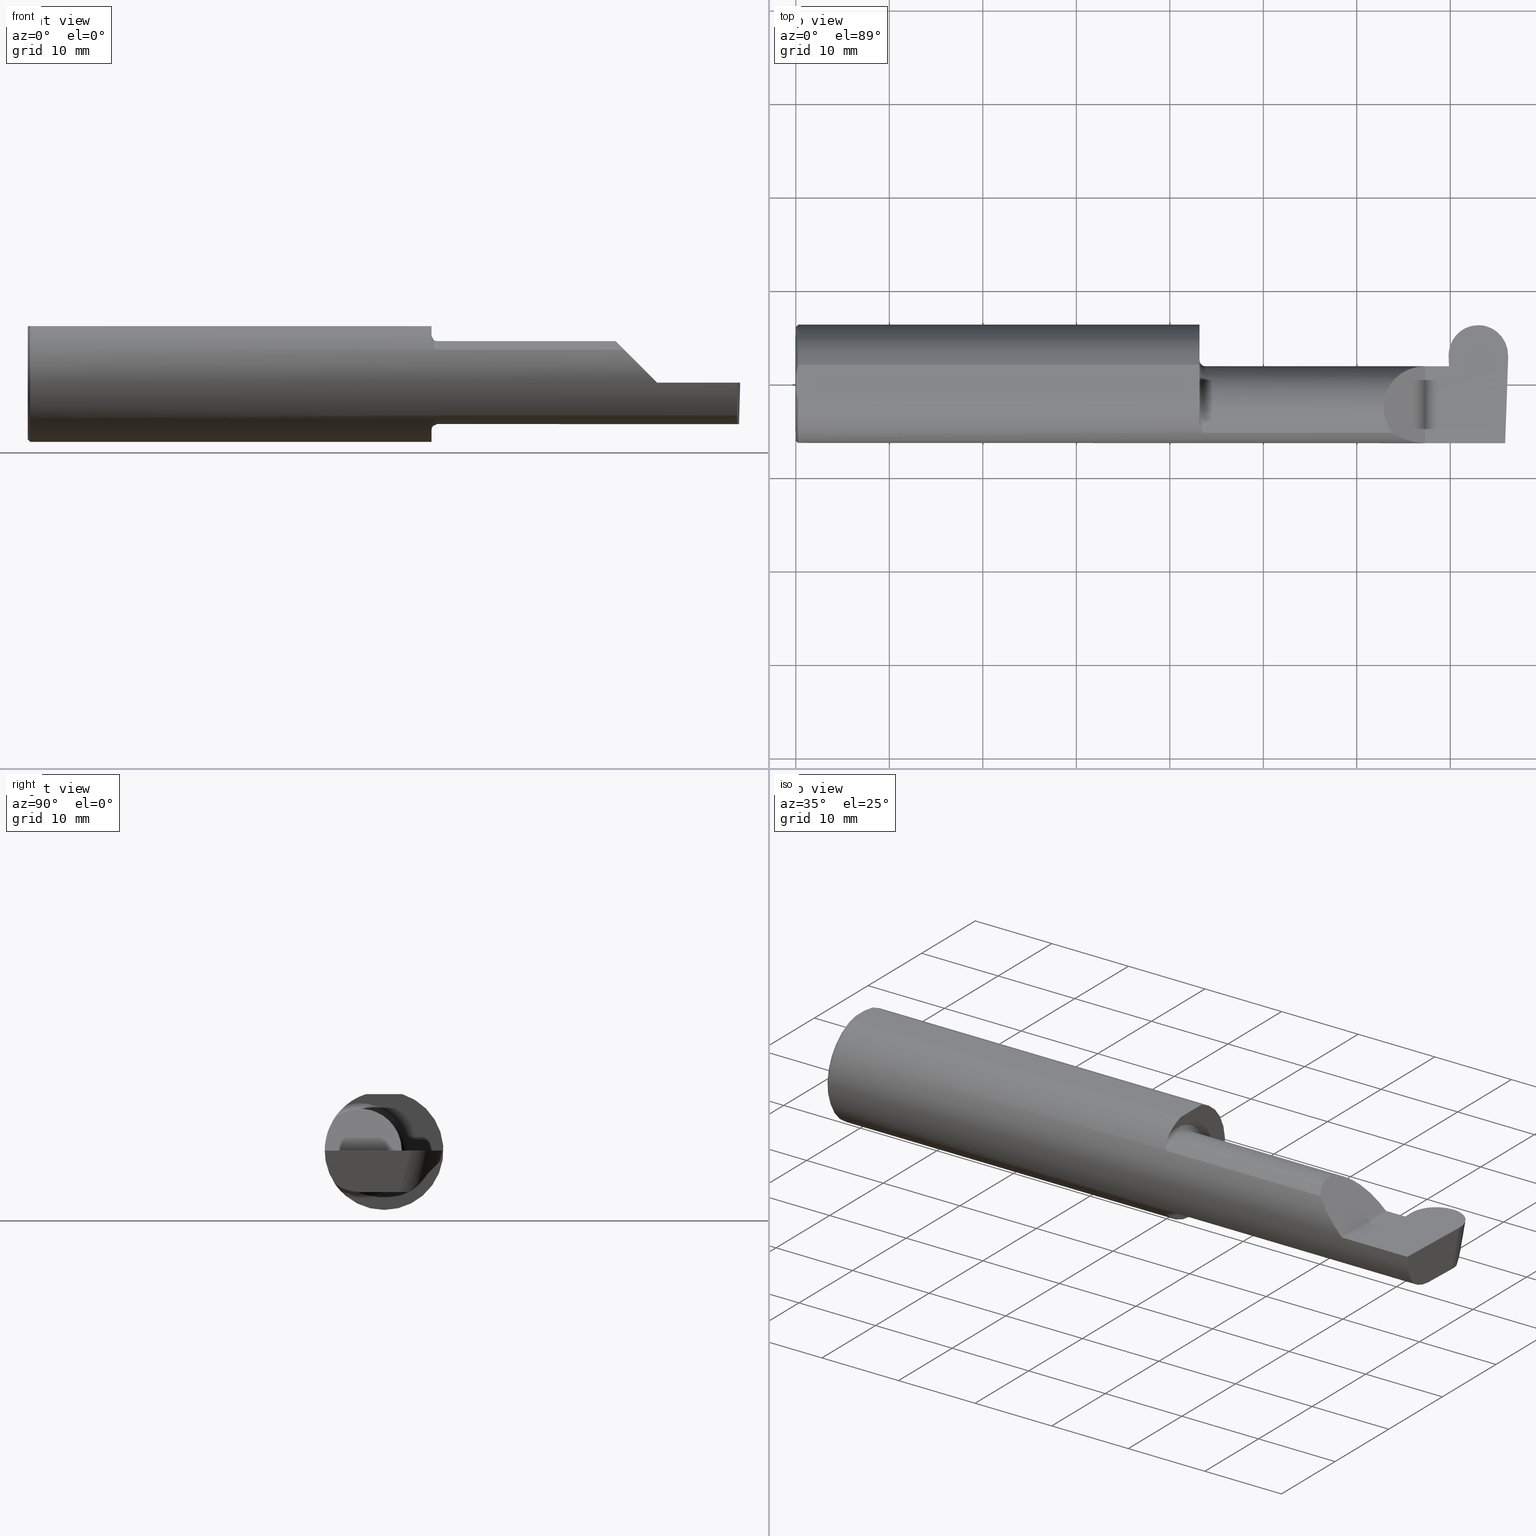
[diagram: canonical four-view strip — front | top / right | iso, engineering-drawing reading convention]
A machine part, canonical four-view strip (front | top / right | iso — engineering-drawing reading convention). The complete STEP part file that produces these views, byte-faithful:
ISO-10303-21;
HEADER;
FILE_DESCRIPTION (( 'STEP AP203' ),
    '1' );
FILE_NAME ('222524-GFR250-20.STEP',
    '2024-06-28T19:29:10',
    ( '' ),
    ( '' ),
    'SwSTEP 2.0',
    'SolidWorks 2024',
    '' );
FILE_SCHEMA (( 'CONFIG_CONTROL_DESIGN' ));
ENDSEC;

DATA;
#1 = FACE_OUTER_BOUND ( 'NONE', #703, .T. ) ;
#2 = VERTEX_POINT ( 'NONE', #100 ) ;
#3 = PERSON_AND_ORGANIZATION_ROLE ( 'creator' ) ;
#4 = ORIENTED_EDGE ( 'NONE', *, *, #396, .F. ) ;
#5 = ADVANCED_FACE ( 'NONE', ( #681 ), #507, .T. ) ;
#6 = VECTOR ( 'NONE', #18, 39.37007874015748854 ) ;
#7 = CIRCLE ( 'NONE', #183, 0.2498499999999999888 ) ;
#8 = CARTESIAN_POINT ( 'NONE',  ( 1.700000000000000178, -0.1616050818046604054, -0.1905487340154980724 ) ) ;
#9 = ORIENTED_EDGE ( 'NONE', *, *, #566, .T. ) ;
#10 = CARTESIAN_POINT ( 'NONE',  ( 0.000000000000000000, -0.07650098038587520299, 0.2378499999999998671 ) ) ;
#11 =( BOUNDED_CURVE ( )  B_SPLINE_CURVE ( 3, ( #82, #660, #498, #203 ),
 .UNSPECIFIED., .F., .T. ) 
 B_SPLINE_CURVE_WITH_KNOTS ( ( 4, 4 ),
 ( 4.712388980384689674, 5.298966915116348986 ),
 .UNSPECIFIED. ) 
 CURVE ( )  GEOMETRIC_REPRESENTATION_ITEM ( )  RATIONAL_B_SPLINE_CURVE ( ( 1.000000000000000000, 0.9715321379117536349, 0.9715321379117536349, 1.000000000000000000 ) ) 
 REPRESENTATION_ITEM ( '' )  );
#12 = VERTEX_POINT ( 'NONE', #394 ) ;
#13 = PERSON_AND_ORGANIZATION ( #698, #115 ) ;
#14 = CARTESIAN_POINT ( 'NONE',  ( 1.701385488563270210, -0.1808287530430325030, -0.1728790649396287071 ) ) ;
#15 = EDGE_LOOP ( 'NONE', ( #500, #485, #712, #144, #526, #568 ) ) ;
#16 = DIRECTION ( 'NONE',  ( 0.000000000000000000, -0.7071067811865435759, -0.7071067811865514585 ) ) ;
#17 = B_SPLINE_CURVE_WITH_KNOTS ( 'NONE', 3,
 ( #590, #310, #484, #538, #709, #83, #531, #701, #657, #14, #304, #478 ),
 .UNSPECIFIED., .F., .F.,
 ( 4, 2, 2, 2, 2, 4 ),
 ( 1.964491429041408615E-07, 0.0001260981470478429213, 0.0002519998449527816628, 0.0005038032407626452137, 0.001007410032382372424, 0.002014623615621820123 ),
 .UNSPECIFIED. ) ;
#18 = DIRECTION ( 'NONE',  ( 0.02590004391968268524, 0.2587322210431824976, 0.9656017944882975268 ) ) ;
#19 = VERTEX_POINT ( 'NONE', #103 ) ;
#20 = EDGE_CURVE ( 'NONE', #319, #164, #233, .T. ) ;
#21 = DIRECTION ( 'NONE',  ( -0.7071067811865439090, 0.000000000000000000, -0.7071067811865511255 ) ) ;
#22 = ORIENTED_EDGE ( 'NONE', *, *, #376, .T. ) ;
#23 = EDGE_CURVE ( 'NONE', #446, #617, #331, .T. ) ;
#24 = DIRECTION ( 'NONE',  ( -0.03489949670249542502, -0.9993908270190959842, 1.222058880457094641E-16 ) ) ;
#25 = LINE ( 'NONE', #256, #294 ) ;
#26 = ORIENTED_EDGE ( 'NONE', *, *, #217, .T. ) ;
#27 = CARTESIAN_POINT ( 'NONE',  ( 2.989756814851906697, -0.08644748268070719111, -0.1750000000000000722 ) ) ;
#28 = CARTESIAN_POINT ( 'NONE',  ( 0.000000000000000000, -0.03090954545120560767, 0.2378499999999998671 ) ) ;
#29 = AXIS2_PLACEMENT_3D ( 'NONE', #351, #406, #287 ) ;
#30 = VERTEX_POINT ( 'NONE', #335 ) ;
#31 = AXIS2_PLACEMENT_3D ( 'NONE', #379, #223, #511 ) ;
#32 = DIRECTION ( 'NONE',  ( -0.02590004391968268177, -0.2587322210431824976, -0.9656017944882975268 ) ) ;
#33 = DIRECTION ( 'NONE',  ( 1.000000000000000000, 0.000000000000000000, -0.000000000000000000 ) ) ;
#34 = ORIENTED_EDGE ( 'NONE', *, *, #167, .T. ) ;
#35 = CARTESIAN_POINT ( 'NONE',  ( 2.409263745716142324, -0.07597241004310675838, 0.2407362542838553388 ) ) ;
#36 = CARTESIAN_POINT ( 'NONE',  ( 1.725000000000000089, -0.1008500000000000646, 0.000000000000000000 ) ) ;
#37 = ADVANCED_FACE ( 'NONE', ( #149 ), #182, .T. ) ;
#38 = DIRECTION ( 'NONE',  ( -1.000000000000000000, -6.511907283740594647E-17, -0.000000000000000000 ) ) ;
#39 = ADVANCED_FACE ( 'NONE', ( #728 ), #107, .F. ) ;
#40 = DIRECTION ( 'NONE',  ( -1.000000000000000000, -6.511907283740594647E-17, -0.000000000000000000 ) ) ;
#41 = VERTEX_POINT ( 'NONE', #503 ) ;
#42 = CARTESIAN_POINT ( 'NONE',  ( 1.700000000000000178, 0.2498499999999997667, 0.2378499999999998671 ) ) ;
#43 = ORIENTED_EDGE ( 'NONE', *, *, #20, .T. ) ;
#44 = CIRCLE ( 'NONE', #105, 0.1999999999999999833 ) ;
#45 = CARTESIAN_POINT ( 'NONE',  ( 1.700000000000000178, 0.07650098038587520299, 0.2378499999999998671 ) ) ;
#46 = EDGE_LOOP ( 'NONE', ( #597, #557, #632, #403, #34, #198, #602, #364, #417, #152 ) ) ;
#47 = CARTESIAN_POINT ( 'NONE',  ( 2.999793206199442785, 0.1134305025558126345, 0.000000000000000000 ) ) ;
#48 = EDGE_CURVE ( 'NONE', #319, #581, #407, .T. ) ;
#49 = DIRECTION ( 'NONE',  ( 1.000000000000000000, 0.000000000000000000, 0.000000000000000000 ) ) ;
#50 = LINE ( 'NONE', #671, #433 ) ;
#51 = DIRECTION ( 'NONE',  ( -6.511907283740594647E-17, 1.000000000000000000, 0.000000000000000000 ) ) ;
#52 = DIRECTION ( 'NONE',  ( 1.000000000000000000, 0.000000000000000000, 0.000000000000000000 ) ) ;
#53 = PRODUCT_DEFINITION_FORMATION_WITH_SPECIFIED_SOURCE ( 'ANY', '', #400, .NOT_KNOWN. ) ;
#54 = DIRECTION ( 'NONE',  ( -0.01806954526206910883, 0.01744955702544859211, 0.9996844524616943506 ) ) ;
#55 = ORIENTED_EDGE ( 'NONE', *, *, #137, .F. ) ;
#56 = DATE_AND_TIME ( #298, #743 ) ;
#57 = PLANE ( 'NONE',  #598 ) ;
#58 = ORIENTED_EDGE ( 'NONE', *, *, #48, .T. ) ;
#59 = EDGE_CURVE ( 'NONE', #315, #535, #156, .T. ) ;
#60 = CALENDAR_DATE ( 2024, 28, 6 ) ;
#61 = CARTESIAN_POINT ( 'NONE',  ( 2.748789500000000441, 0.1195161796598800952, -0.0003276550781925004273 ) ) ;
#62 = ORIENTED_EDGE ( 'NONE', *, *, #704, .T. ) ;
#63 = VECTOR ( 'NONE', #607, 39.37007874015748143 ) ;
#64 = VECTOR ( 'NONE', #38, 39.37007874015748143 ) ;
#65 = AXIS2_PLACEMENT_3D ( 'NONE', #453, #389, #16 ) ;
#66 = DIRECTION ( 'NONE',  ( 0.000000000000000000, -1.000000000000000000, 0.000000000000000000 ) ) ;
#67 = ORIENTED_EDGE ( 'NONE', *, *, #68, .T. ) ;
#68 = EDGE_CURVE ( 'NONE', #439, #12, #523, .T. ) ;
#69 = EDGE_CURVE ( 'NONE', #274, #164, #677, .T. ) ;
#70 = CARTESIAN_POINT ( 'NONE',  ( 2.753013396079577735, 0.1058243371481696476, -0.1750000000000001277 ) ) ;
#71 = ORIENTED_EDGE ( 'NONE', *, *, #469, .F. ) ;
#72 = LINE ( 'NONE', #132, #655 ) ;
#73 = CC_DESIGN_PERSON_AND_ORGANIZATION_ASSIGNMENT ( #347, #237, ( #53 ) ) ;
#74 = LINE ( 'NONE', #184, #284 ) ;
#75 = VERTEX_POINT ( 'NONE', #205 ) ;
#76 = LINE ( 'NONE', #27, #345 ) ;
#77 = AXIS2_PLACEMENT_3D ( 'NONE', #738, #338, #552 ) ;
#78 = CARTESIAN_POINT ( 'NONE',  ( -0.002039370078740339320, 0.2348243371481683328, -0.04599999999999999922 ) ) ;
#79 = VECTOR ( 'NONE', #40, 39.37007874015748143 ) ;
#80 = EDGE_CURVE ( 'NONE', #688, #319, #265, .T. ) ;
#81 = ORIENTED_EDGE ( 'NONE', *, *, #376, .F. ) ;
#82 = CARTESIAN_POINT ( 'NONE',  ( 2.650000000000000355, -0.2498499999999999610, 4.286263797015729199E-17 ) ) ;
#83 = CARTESIAN_POINT ( 'NONE',  ( 1.714302603425052807, -0.2041009206016211885, -0.1441313430770041204 ) ) ;
#84 = ORIENTED_EDGE ( 'NONE', *, *, #217, .F. ) ;
#85 = DIRECTION ( 'NONE',  ( 6.511907283740594647E-17, -1.000000000000000000, 0.000000000000000000 ) ) ;
#86 = CARTESIAN_POINT ( 'NONE',  ( 2.871989500000000195, 0.2471499999999999808, 0.000000000000000000 ) ) ;
#87 = VERTEX_POINT ( 'NONE', #687 ) ;
#88 = DIRECTION ( 'NONE',  ( 0.9992386149554828290, 0.03489418134010756345, 0.01745240643728358798 ) ) ;
#89 = CC_DESIGN_PERSON_AND_ORGANIZATION_ASSIGNMENT ( #583, #174, ( #717 ) ) ;
#90 = DIRECTION ( 'NONE',  ( 0.000000000000000000, -0.9659258262890682012, 0.2588190451025209615 ) ) ;
#91 = B_SPLINE_CURVE_WITH_KNOTS ( 'NONE', 3,
 ( #718, #440, #199, #129, #362, #501, #275, #98, #561, #726, #455, #329, #339, #504 ),
 .UNSPECIFIED., .F., .F.,
 ( 4, 2, 2, 2, 2, 2, 4 ),
 ( 0.0003834465838148152454, 0.0008781406165086708474, 0.001372834649202526449, 0.001867528681896382051, 0.002114875698243305190, 0.002238549206416759821, 0.002362222714590214018 ),
 .UNSPECIFIED. ) ;
#92 = CARTESIAN_POINT ( 'NONE',  ( 0.000000000000000000, 0.03090954545120574992, 0.2378499999999998671 ) ) ;
#93 = CARTESIAN_POINT ( 'NONE',  ( 2.999923484675441010, 0.1171611899918090643, 0.000000000000000000 ) ) ;
#94 = EDGE_CURVE ( 'NONE', #539, #306, #529, .T. ) ;
#95 = FACE_OUTER_BOUND ( 'NONE', #288, .T. ) ;
#96 = ADVANCED_FACE ( 'NONE', ( #116 ), #245, .F. ) ;
#97 = DIRECTION ( 'NONE',  ( 0.000000000000000000, -0.9659258262890683122, 0.2588190451025209615 ) ) ;
#98 = CARTESIAN_POINT ( 'NONE',  ( 1.712616400345755130, -0.2024684335577101590, 0.1464246884265639759 ) ) ;
#99 = CARTESIAN_POINT ( 'NONE',  ( 1.725000000000000089, -0.2080850024789289432, 0.1382955322609669135 ) ) ;
#100 = CARTESIAN_POINT ( 'NONE',  ( 2.511704467739031887, -0.2080850024789288599, 0.1382955322609669413 ) ) ;
#101 = EDGE_LOOP ( 'NONE', ( #733, #695, #43, #290 ) ) ;
#102 = CARTESIAN_POINT ( 'NONE',  ( -0.002039370078740339320, 0.2471499999999999808, 0.000000000000000000 ) ) ;
#103 = CARTESIAN_POINT ( 'NONE',  ( 2.871989500000000195, 0.2471499999999999808, 0.000000000000000000 ) ) ;
#104 = ADVANCED_FACE ( 'NONE', ( #1 ), #57, .T. ) ;
#105 = AXIS2_PLACEMENT_3D ( 'NONE', #466, #355, #66 ) ;
#106 = CARTESIAN_POINT ( 'NONE',  ( 2.995099234303557623, 0.06653939388036604619, -0.1750000000000001277 ) ) ;
#107 = PLANE ( 'NONE',  #690 ) ;
#108 = PLANE ( 'NONE',  #493 ) ;
#109 = CARTESIAN_POINT ( 'NONE',  ( 1.700000000000000178, 0.2498499999999998222, 0.000000000000000000 ) ) ;
#110 = PERSON_AND_ORGANIZATION ( #698, #115 ) ;
#111 = APPROVAL ( #465, 'UNSPECIFIED' ) ;
#112 = CARTESIAN_POINT ( 'NONE',  ( 2.995099234303557623, 0.06653939388036604619, -0.1750000000000001277 ) ) ;
#113 = ORIENTED_EDGE ( 'NONE', *, *, #94, .T. ) ;
#114 = APPROVAL_ROLE ( '' ) ;
#115 = ORGANIZATION ( 'UNSPECIFIED', 'UNSPECIFIED', '' ) ;
#116 = FACE_OUTER_BOUND ( 'NONE', #301, .T. ) ;
#117 = ORIENTED_EDGE ( 'NONE', *, *, #176, .F. ) ;
#118 = COORDINATED_UNIVERSAL_TIME_OFFSET ( 8, 0, .BEHIND. ) ;
#119 = CARTESIAN_POINT ( 'NONE',  ( 0.000000000000000000, 0.000000000000000000, 0.000000000000000000 ) ) ;
#120 = ORIENTED_EDGE ( 'NONE', *, *, #276, .T. ) ;
#121 = CARTESIAN_POINT ( 'NONE',  ( 2.950455787437228139, 0.2471500000000003971, -7.856938782845208821E-19 ) ) ;
#122 = ORIENTED_EDGE ( 'NONE', *, *, #550, .F. ) ;
#123 = EDGE_CURVE ( 'NONE', #581, #274, #518, .T. ) ;
#124 = APPROVAL_STATUS ( 'not_yet_approved' ) ;
#125 = VECTOR ( 'NONE', #250, 39.37007874015748143 ) ;
#126 = VECTOR ( 'NONE', #392, 39.37007874015748143 ) ;
#127 = CARTESIAN_POINT ( 'NONE',  ( 2.875201260087795863, 0.2471499999999999808, 0.000000000000000000 ) ) ;
#128 = ORIENTED_EDGE ( 'NONE', *, *, #239, .F. ) ;
#129 = CARTESIAN_POINT ( 'NONE',  ( 1.701849548162864600, -0.1805300287242673773, 0.1728462070311780896 ) ) ;
#130 = CARTESIAN_POINT ( 'NONE',  ( 2.748789500000000441, 0.1943187064415508314, 3.216169852589703280E-17 ) ) ;
#131 = ORIENTED_EDGE ( 'NONE', *, *, #405, .T. ) ;
#132 = CARTESIAN_POINT ( 'NONE',  ( -0.002039370078740339320, 0.1058243371481696476, -0.1750000000000001277 ) ) ;
#133 = DIRECTION ( 'NONE',  ( -1.000000000000000000, -6.511907283740594647E-17, -0.000000000000000000 ) ) ;
#134 = ORIENTED_EDGE ( 'NONE', *, *, #166, .T. ) ;
#135 = CARTESIAN_POINT ( 'NONE',  ( 1.725000000000000089, -0.1008500000000000785, 0.000000000000000000 ) ) ;
#136 = CARTESIAN_POINT ( 'NONE',  ( -0.002039370078740339320, 0.2471499999999999808, 0.000000000000000000 ) ) ;
#137 = EDGE_CURVE ( 'NONE', #745, #559, #229, .T. ) ;
#138 = ORIENTED_EDGE ( 'NONE', *, *, #239, .T. ) ;
#139 = CARTESIAN_POINT ( 'NONE',  ( 2.753585400763539415, -0.1008500000000000091, -0.1750000000000000444 ) ) ;
#140 = CARTESIAN_POINT ( 'NONE',  ( 2.748789500000000441, 0.1196039745734777532, 3.076441347372056086E-17 ) ) ;
#141 = EDGE_LOOP ( 'NONE', ( #128, #662, #576, #254, #650 ) ) ;
#142 = DIRECTION ( 'NONE',  ( 1.000000000000000000, -0.000000000000000000, -0.000000000000000000 ) ) ;
#143 = CARTESIAN_POINT ( 'NONE',  ( 2.750367999175829414, 0.07414999999999984104, 0.000000000000000000 ) ) ;
#144 = ORIENTED_EDGE ( 'NONE', *, *, #68, .F. ) ;
#145 = DIRECTION ( 'NONE',  ( -0.02590004391968268177, -0.2587322210431824421, -0.9656017944882975268 ) ) ;
#146 = EDGE_CURVE ( 'NONE', #559, #423, #163, .T. ) ;
#147 = FACE_OUTER_BOUND ( 'NONE', #373, .T. ) ;
#148 = VECTOR ( 'NONE', #54, 39.37007874015748143 ) ;
#149 = FACE_OUTER_BOUND ( 'NONE', #101, .T. ) ;
#150 = DIRECTION ( 'NONE',  ( 0.9998367324388628408, 0.0003153570480505128921, 0.01806679318280336732 ) ) ;
#151 = DIRECTION ( 'NONE',  ( -1.000000000000000000, 0.000000000000000000, 1.224646799147351975E-16 ) ) ;
#152 = ORIENTED_EDGE ( 'NONE', *, *, #191, .F. ) ;
#153 = EDGE_LOOP ( 'NONE', ( #386, #360, #81, #414 ) ) ;
#154 = EDGE_CURVE ( 'NONE', #608, #587, #680, .T. ) ;
#155 = CARTESIAN_POINT ( 'NONE',  ( 2.748789500000000441, 0.1454645653348735634, -0.05220861937271872866 ) ) ;
#156 = LINE ( 'NONE', #161, #729 ) ;
#157 = DIRECTION ( 'NONE',  ( 1.000000000000000000, 6.511907283740594647E-17, 0.000000000000000000 ) ) ;
#158 = ORIENTED_EDGE ( 'NONE', *, *, #713, .F. ) ;
#159 = LOCAL_TIME ( 12, 29, 10.00000000000000000, #686 ) ;
#160 = CARTESIAN_POINT ( 'NONE',  ( 1.700000000000000178, 0.07404339472834149671, -0.006107411922944308742 ) ) ;
#161 = CARTESIAN_POINT ( 'NONE',  ( 3.402190948718818664, -0.1008499999999999674, -0.1750000000000000722 ) ) ;
#162 = APPLICATION_PROTOCOL_DEFINITION ( 'international standard', 'config_control_design', 1994, #570 ) ;
#163 = LINE ( 'NONE', #342, #273 ) ;
#164 = VERTEX_POINT ( 'NONE', #625 ) ;
#165 = DATE_AND_TIME ( #520, #447 ) ;
#166 = EDGE_CURVE ( 'NONE', #75, #439, #186, .T. ) ;
#167 = EDGE_CURVE ( 'NONE', #212, #30, #240, .T. ) ;
#168 = DIRECTION ( 'NONE',  ( 1.000000000000000000, 0.000000000000000000, 0.000000000000000000 ) ) ;
#169 = ORIENTED_EDGE ( 'NONE', *, *, #276, .F. ) ;
#170 = VECTOR ( 'NONE', #168, 39.37007874015748143 ) ;
#171 = APPROVAL_PERSON_ORGANIZATION ( #110, #644, #358 ) ;
#172 = CARTESIAN_POINT ( 'NONE',  ( 1.700000000000000178, 0.07414999999999995206, 1.592040838891556877E-16 ) ) ;
#173 = ORIENTED_EDGE ( 'NONE', *, *, #348, .T. ) ;
#174 = PERSON_AND_ORGANIZATION_ROLE ( 'classification_officer' ) ;
#175 = UNCERTAINTY_MEASURE_WITH_UNIT (LENGTH_MEASURE( 1.000000000000000082E-05 ), #266, 'distance_accuracy_value', 'NONE');
#176 = EDGE_CURVE ( 'NONE', #512, #699, #283, .T. ) ;
#177 = FACE_OUTER_BOUND ( 'NONE', #46, .T. ) ;
#178 = ORIENTED_EDGE ( 'NONE', *, *, #340, .F. ) ;
#179 = APPROVAL_ROLE ( '' ) ;
#180 = DIRECTION ( 'NONE',  ( -0.03489949670249543195, -0.9993908270190959842, 0.000000000000000000 ) ) ;
#181 = ORIENTED_EDGE ( 'NONE', *, *, #361, .T. ) ;
#182 = CONICAL_SURFACE ( 'NONE', #357, 0.2398500000000001742, 0.7853981633974466137 ) ;
#183 = AXIS2_PLACEMENT_3D ( 'NONE', #722, #606, #428 ) ;
#184 = CARTESIAN_POINT ( 'NONE',  ( 2.871989500000000195, 0.2471499999999999808, -3.410704134146979313E-18 ) ) ;
#185 = ORIENTED_EDGE ( 'NONE', *, *, #626, .T. ) ;
#186 =( BOUNDED_CURVE ( )  B_SPLINE_CURVE ( 3, ( #61, #349, #571, #470 ),
 .UNSPECIFIED., .F., .T. ) 
 B_SPLINE_CURVE_WITH_KNOTS ( ( 4, 4 ),
 ( 0.02920211248569833454, 0.2720232217214048620 ),
 .UNSPECIFIED. ) 
 CURVE ( )  GEOMETRIC_REPRESENTATION_ITEM ( )  RATIONAL_B_SPLINE_CURVE ( ( 1.000000000000000000, 0.9950925250835043201, 0.9950925250835043201, 1.000000000000000000 ) ) 
 REPRESENTATION_ITEM ( '' )  );
#187 = CARTESIAN_POINT ( 'NONE',  ( 0.000000000000000000, 0.000000000000000000, 0.000000000000000000 ) ) ;
#188 = CARTESIAN_POINT ( 'NONE',  ( 0.001983148254845701515, -0.04629825796642599717, 0.2378499999999998671 ) ) ;
#189 = ORIENTED_EDGE ( 'NONE', *, *, #589, .T. ) ;
#190 = CARTESIAN_POINT ( 'NONE',  ( 2.986150208451177512, -0.2080850024789288599, -0.1382955322609668858 ) ) ;
#191 = EDGE_CURVE ( 'NONE', #446, #315, #268, .T. ) ;
#192 = LINE ( 'NONE', #600, #621 ) ;
#193 = ORIENTED_EDGE ( 'NONE', *, *, #713, .T. ) ;
#194 = CARTESIAN_POINT ( 'NONE',  ( 2.986241469175252128, -0.2498499999999999610, -0.04956584089959703565 ) ) ;
#195 = ORIENTED_EDGE ( 'NONE', *, *, #322, .T. ) ;
#196 = VECTOR ( 'NONE', #487, 39.37007874015748143 ) ;
#197 = CARTESIAN_POINT ( 'NONE',  ( 0.000000000000000000, 0.03090954545120574992, 0.2378499999999998671 ) ) ;
#198 = ORIENTED_EDGE ( 'NONE', *, *, #370, .F. ) ;
#199 = CARTESIAN_POINT ( 'NONE',  ( 1.700367168219774516, -0.1713400252854603290, 0.1819601557798506408 ) ) ;
#200 = CARTESIAN_POINT ( 'NONE',  ( 2.739220100782099543, 0.07404339472834139957, -0.006107411922948981220 ) ) ;
#201 = EDGE_CURVE ( 'NONE', #699, #41, #476, .T. ) ;
#202 = ORIENTED_EDGE ( 'NONE', *, *, #469, .T. ) ;
#203 = CARTESIAN_POINT ( 'NONE',  ( 2.511704467739031887, -0.2080850024789288599, 0.1382955322609669413 ) ) ;
#204 = CARTESIAN_POINT ( 'NONE',  ( 0.000000000000000000, 0.000000000000000000, 0.000000000000000000 ) ) ;
#205 = CARTESIAN_POINT ( 'NONE',  ( 2.748789500000000441, 0.1195161796598800952, -0.0003276550781925004273 ) ) ;
#206 = CARTESIAN_POINT ( 'NONE',  ( 2.236894750000000265, -0.2080850024789289432, 0.1382955322609668858 ) ) ;
#207 = ORIENTED_EDGE ( 'NONE', *, *, #682, .T. ) ;
#208 = DIRECTION ( 'NONE',  ( -1.224646799147351975E-16, 0.000000000000000000, -1.000000000000000000 ) ) ;
#209 = VERTEX_POINT ( 'NONE', #112 ) ;
#210 = AXIS2_PLACEMENT_3D ( 'NONE', #187, #424, #708 ) ;
#211 = DIRECTION ( 'NONE',  ( -0.9992386149554828290, 0.03489418134010812550, 0.01745240643728358798 ) ) ;
#212 = VERTEX_POINT ( 'NONE', #580 ) ;
#213 = LINE ( 'NONE', #42, #336 ) ;
#214 = DIRECTION ( 'NONE',  ( 0.000000000000000000, 0.000000000000000000, -1.000000000000000000 ) ) ;
#215 = CARTESIAN_POINT ( 'NONE',  ( 2.754531504291869659, -2.688765469242836659, -0.1821862048796526190 ) ) ;
#216 = DIRECTION ( 'NONE',  ( 1.685405624973891681E-17, -0.2588190451025209615, -0.9659258262890682012 ) ) ;
#217 = EDGE_CURVE ( 'NONE', #659, #230, #44, .T. ) ;
#218 = CARTESIAN_POINT ( 'NONE',  ( 2.752403753671178954, 0.1033802780873585708, -0.1750000000000001277 ) ) ;
#219 = DIRECTION ( 'NONE',  ( -0.0003154085283454350426, 0.9999999502587288980, -1.223178646569383438E-16 ) ) ;
#220 = ORIENTED_EDGE ( 'NONE', *, *, #353, .F. ) ;
#221 = AXIS2_PLACEMENT_3D ( 'NONE', #102, #90, #327 ) ;
#222 = APPROVAL_PERSON_ORGANIZATION ( #291, #111, #114 ) ;
#223 = DIRECTION ( 'NONE',  ( -1.000000000000000000, -6.511907283740594647E-17, 0.000000000000000000 ) ) ;
#224 = B_SPLINE_CURVE_WITH_KNOTS ( 'NONE', 3,
 ( #419, #434, #669, #441 ),
 .UNSPECIFIED., .F., .F.,
 ( 4, 4 ),
 ( 0.000000000000000000, 1.000000000000000000 ),
 .UNSPECIFIED. ) ;
#225 = CARTESIAN_POINT ( 'NONE',  ( 2.932279805067559586, 0.2348243371481688047, -0.04599999999999949962 ) ) ;
#226 = ADVANCED_FACE ( 'NONE', ( #634 ), #697, .T. ) ;
#227 = ORIENTED_EDGE ( 'NONE', *, *, #305, .T. ) ;
#228 =( NAMED_UNIT ( * ) SI_UNIT ( $, .STERADIAN. ) SOLID_ANGLE_UNIT ( ) );
#229 = LINE ( 'NONE', #515, #609 ) ;
#230 = VERTEX_POINT ( 'NONE', #8 ) ;
#231 = COORDINATED_UNIVERSAL_TIME_OFFSET ( 8, 0, .BEHIND. ) ;
#232 = CARTESIAN_POINT ( 'NONE',  ( 2.748866015324560319, 0.1171611899918090366, 0.000000000000000000 ) ) ;
#233 = B_SPLINE_CURVE_WITH_KNOTS ( 'NONE', 3,
 ( #92, #457, #735, #325 ),
 .UNSPECIFIED., .F., .F.,
 ( 4, 4 ),
 ( 0.01593449416844770414, 0.01712021724825603733 ),
 .UNSPECIFIED. ) ;
#234 = ORIENTED_EDGE ( 'NONE', *, *, #694, .F. ) ;
#235 = MANIFOLD_SOLID_BREP ( 'Fillet1', #307 ) ;
#236 = VECTOR ( 'NONE', #344, 39.37007874015748143 ) ;
#237 = PERSON_AND_ORGANIZATION_ROLE ( 'design_supplier' ) ;
#238 = AXIS2_PLACEMENT_3D ( 'NONE', #527, #415, #52 ) ;
#239 = EDGE_CURVE ( 'NONE', #745, #653, #425, .T. ) ;
#240 = LINE ( 'NONE', #172, #236 ) ;
#241 = ORIENTED_EDGE ( 'NONE', *, *, #154, .T. ) ;
#242 =( BOUNDED_CURVE ( )  B_SPLINE_CURVE ( 3, ( #86, #646, #130, #140 ),
 .UNSPECIFIED., .F., .F. ) 
 B_SPLINE_CURVE_WITH_KNOTS ( ( 4, 4 ),
 ( -8.881784197001252323E-16, 1.570796326794896780 ),
 .UNSPECIFIED. ) 
 CURVE ( )  GEOMETRIC_REPRESENTATION_ITEM ( )  RATIONAL_B_SPLINE_CURVE ( ( 1.000000000000000000, 0.8047378541243646044, 0.8047378541243646044, 1.000000000000000000 ) ) 
 REPRESENTATION_ITEM ( '' )  );
#243 = SECURITY_CLASSIFICATION_LEVEL ( 'unclassified' ) ;
#244 = ADVANCED_FACE ( 'NONE', ( #177 ), #422, .T. ) ;
#245 = PLANE ( 'NONE',  #29 ) ;
#246 = ORIENTED_EDGE ( 'NONE', *, *, #620, .T. ) ;
#247 = CARTESIAN_POINT ( 'NONE',  ( 2.768056554299977989, 0.1849635101964373640, -0.09586082695173160639 ) ) ;
#248 = ORIENTED_EDGE ( 'NONE', *, *, #23, .F. ) ;
#249 = FACE_OUTER_BOUND ( 'NONE', #491, .T. ) ;
#250 = DIRECTION ( 'NONE',  ( -1.000000000000000000, -0.000000000000000000, -0.000000000000000000 ) ) ;
#251 = ORIENTED_EDGE ( 'NONE', *, *, #732, .T. ) ;
#252 = DIRECTION ( 'NONE',  ( -0.03489949670249486297, 0.9993908270190959842, 0.000000000000000000 ) ) ;
#253 = LINE ( 'NONE', #136, #196 ) ;
#254 = ORIENTED_EDGE ( 'NONE', *, *, #154, .F. ) ;
#255 = PLANE ( 'NONE',  #323 ) ;
#256 = CARTESIAN_POINT ( 'NONE',  ( 2.748789500000000441, -0.2500000000000000555, 3.076441347372055469E-17 ) ) ;
#257 = ORIENTED_EDGE ( 'NONE', *, *, #303, .T. ) ;
#258 = CARTESIAN_POINT ( 'NONE',  ( 1.725000000000000089, -0.2080850024789288599, -0.1382955322609669135 ) ) ;
#259 = AXIS2_PLACEMENT_3D ( 'NONE', #727, #208, #151 ) ;
#260 = CARTESIAN_POINT ( 'NONE',  ( 0.009999999999999856226, 0.000000000000000000, 0.000000000000000000 ) ) ;
#261 = EDGE_LOOP ( 'NONE', ( #647, #67, #685, #62, #542, #436, #193 ) ) ;
#262 = DIRECTION ( 'NONE',  ( 0.000000000000000000, 0.9659258262890680902, -0.2588190451025210170 ) ) ;
#263 =( BOUNDED_CURVE ( )  B_SPLINE_CURVE ( 3, ( #70, #247, #300, #593 ),
 .UNSPECIFIED., .F., .T. ) 
 B_SPLINE_CURVE_WITH_KNOTS ( ( 4, 4 ),
 ( 4.975001206325426750, 6.283185307179586232 ),
 .UNSPECIFIED. ) 
 CURVE ( )  GEOMETRIC_REPRESENTATION_ITEM ( )  RATIONAL_B_SPLINE_CURVE ( ( 1.000000000000000000, 0.8624004580113926455, 0.8624004580113926455, 1.000000000000000000 ) ) 
 REPRESENTATION_ITEM ( '' )  );
#264 = PLANE ( 'NONE',  #221 ) ;
#265 = LINE ( 'NONE', #442, #547 ) ;
#266 =( CONVERSION_BASED_UNIT ( 'INCH', #332 ) LENGTH_UNIT ( ) NAMED_UNIT ( #391 ) );
#267 = CARTESIAN_POINT ( 'NONE',  ( 2.986150208451177512, -0.2080850024789288599, -0.1382955322609668858 ) ) ;
#268 =( BOUNDED_CURVE ( )  B_SPLINE_CURVE ( 3, ( #627, #691, #402, #521 ),
 .UNSPECIFIED., .F., .T. ) 
 B_SPLINE_CURVE_WITH_KNOTS ( ( 4, 4 ),
 ( 0.4474640105399703138, 1.107026853503875419 ),
 .UNSPECIFIED. ) 
 CURVE ( )  GEOMETRIC_REPRESENTATION_ITEM ( )  RATIONAL_B_SPLINE_CURVE ( ( 1.000000000000000000, 0.9640754331822831702, 0.9640754331822831702, 1.000000000000000000 ) ) 
 REPRESENTATION_ITEM ( '' )  );
#269 = EDGE_LOOP ( 'NONE', ( #248, #475, #382, #246, #707, #628, #371, #311, #22, #451, #278, #234, #604 ) ) ;
#270 = EDGE_CURVE ( 'NONE', #399, #164, #359, .T. ) ;
#271 = CARTESIAN_POINT ( 'NONE',  ( 2.994065777569717479, 0.09303079560524193936, -0.1750000000000001277 ) ) ;
#272 = FACE_OUTER_BOUND ( 'NONE', #409, .T. ) ;
#273 = VECTOR ( 'NONE', #463, 39.37007874015748143 ) ;
#274 = VERTEX_POINT ( 'NONE', #374 ) ;
#275 = CARTESIAN_POINT ( 'NONE',  ( 1.708182335268384477, -0.1972192205116130026, 0.1535061413537210928 ) ) ;
#276 = EDGE_CURVE ( 'NONE', #87, #608, #714, .T. ) ;
#277 = LINE ( 'NONE', #554, #640 ) ;
#278 = ORIENTED_EDGE ( 'NONE', *, *, #270, .F. ) ;
#279 =( LENGTH_UNIT ( ) NAMED_UNIT ( * ) SI_UNIT ( $, .METRE. ) );
#280 = CC_DESIGN_PERSON_AND_ORGANIZATION_ASSIGNMENT ( #13, #295, ( #53 ) ) ;
#281 = ORIENTED_EDGE ( 'NONE', *, *, #316, .T. ) ;
#282 = EDGE_CURVE ( 'NONE', #12, #87, #263, .T. ) ;
#283 = LINE ( 'NONE', #575, #148 ) ;
#284 = VECTOR ( 'NONE', #719, 39.37007874015748854 ) ;
#285 = ORIENTED_EDGE ( 'NONE', *, *, #191, .T. ) ;
#286 = DATE_TIME_ROLE ( 'classification_date' ) ;
#287 = DIRECTION ( 'NONE',  ( 0.000000000000000000, -0.01745240643728358451, -0.9998476951563912696 ) ) ;
#288 = EDGE_LOOP ( 'NONE', ( #169, #281, #173, #251 ) ) ;
#289 = APPROVAL_DATE_TIME ( #56, #299 ) ;
#290 = ORIENTED_EDGE ( 'NONE', *, *, #69, .F. ) ;
#291 = PERSON_AND_ORGANIZATION ( #698, #115 ) ;
#292 = DIRECTION ( 'NONE',  ( -1.000000000000000000, -0.000000000000000000, -0.000000000000000000 ) ) ;
#293 = ORIENTED_EDGE ( 'NONE', *, *, #361, .F. ) ;
#294 = VECTOR ( 'NONE', #490, 39.37007874015748143 ) ;
#295 = PERSON_AND_ORGANIZATION_ROLE ( 'creator' ) ;
#296 = CC_DESIGN_APPROVAL ( #111, ( #53 ) ) ;
#297 = ORIENTED_EDGE ( 'NONE', *, *, #456, .F. ) ;
#298 = CALENDAR_DATE ( 2024, 28, 6 ) ;
#299 = APPROVAL ( #696, 'UNSPECIFIED' ) ;
#300 = CARTESIAN_POINT ( 'NONE',  ( 2.814042964602051278, 0.2348243371481683606, -0.04600000000000003392 ) ) ;
#301 = EDGE_LOOP ( 'NONE', ( #117, #207, #668, #378 ) ) ;
#302 = FACE_OUTER_BOUND ( 'NONE', #141, .T. ) ;
#303 = EDGE_CURVE ( 'NONE', #617, #230, #17, .T. ) ;
#304 = CARTESIAN_POINT ( 'NONE',  ( 1.699999999999999956, -0.1716188362992553673, -0.1820560320165480472 ) ) ;
#305 = EDGE_CURVE ( 'NONE', #19, #516, #242, .T. ) ;
#306 = VERTEX_POINT ( 'NONE', #318 ) ;
#307 = CLOSED_SHELL ( 'NONE', ( #574, #96, #658, #226, #528, #461, #384, #39, #37, #596, #244, #104, #341, #412, #509, #573, #720, #673, #605, #5 ) ) ;
#308 = FACE_OUTER_BOUND ( 'NONE', #619, .T. ) ;
#309 = APPROVAL_PERSON_ORGANIZATION ( #462, #299, #179 ) ;
#310 = CARTESIAN_POINT ( 'NONE',  ( 1.723318040126429640, -0.2080850024789289987, -0.1382955322609668303 ) ) ;
#311 = ORIENTED_EDGE ( 'NONE', *, *, #94, .F. ) ;
#312 = CC_DESIGN_DATE_AND_TIME_ASSIGNMENT ( #693, #286, ( #717 ) ) ;
#313 = DIRECTION ( 'NONE',  ( -0.7071067811865511255, 0.000000000000000000, 0.7071067811865439090 ) ) ;
#314 = CARTESIAN_POINT ( 'NONE',  ( 0.009999999999999856226, -0.07650098038587520299, 0.2378499999999998671 ) ) ;
#315 = VERTEX_POINT ( 'NONE', #652 ) ;
#316 = EDGE_CURVE ( 'NONE', #87, #19, #74, .T. ) ;
#317 = CARTESIAN_POINT ( 'NONE',  ( 2.873967416046591783, 0.2348243371481683328, -0.04599999999999999922 ) ) ;
#318 = CARTESIAN_POINT ( 'NONE',  ( 1.700000000000000178, -0.07650098038587523075, 0.2378499999999998671 ) ) ;
#319 = VERTEX_POINT ( 'NONE', #197 ) ;
#320 = CARTESIAN_POINT ( 'NONE',  ( 2.987107171508847081, -0.2498499999999999888, 0.000000000000000000 ) ) ;
#321 = VECTOR ( 'NONE', #614, 39.37007874015748143 ) ;
#322 = EDGE_CURVE ( 'NONE', #209, #745, #545, .T. ) ;
#323 = AXIS2_PLACEMENT_3D ( 'NONE', #432, #21, #313 ) ;
#324 = DIRECTION ( 'NONE',  ( 0.000000000000000000, 0.000000000000000000, -1.000000000000000000 ) ) ;
#325 = CARTESIAN_POINT ( 'NONE',  ( 0.009999999999999856226, 0.07650098038587520299, 0.2378499999999998671 ) ) ;
#326 = DIRECTION ( 'NONE',  ( -0.03489949670249542502, -0.9993908270190959842, 0.000000000000000000 ) ) ;
#327 = DIRECTION ( 'NONE',  ( 0.000000000000000000, -0.2588190451025209615, -0.9659258262890682012 ) ) ;
#328 = DIRECTION ( 'NONE',  ( 0.000000000000000000, 0.000000000000000000, -1.000000000000000000 ) ) ;
#329 = CARTESIAN_POINT ( 'NONE',  ( 1.721718393013768722, -0.2077830475237240626, 0.1387513848711937892 ) ) ;
#330 = CARTESIAN_POINT ( 'NONE',  ( 2.750367999175829414, 0.07414999999999984104, -4.822780832875165838E-21 ) ) ;
#331 = LINE ( 'NONE', #615, #64 ) ;
#332 = LENGTH_MEASURE_WITH_UNIT ( LENGTH_MEASURE( 0.02539999999999999897 ), #279 );
#333 = LINE ( 'NONE', #143, #492 ) ;
#334 = VECTOR ( 'NONE', #363, 39.37007874015748143 ) ;
#335 = CARTESIAN_POINT ( 'NONE',  ( 2.739326706053758276, 0.07414999999999984104, 0.000000000000000000 ) ) ;
#336 = VECTOR ( 'NONE', #385, 39.37007874015748143 ) ;
#337 = LINE ( 'NONE', #160, #79 ) ;
#338 = DIRECTION ( 'NONE',  ( 1.000000000000000000, 0.000000000000000000, 0.000000000000000000 ) ) ;
#339 = CARTESIAN_POINT ( 'NONE',  ( 1.723329956043142763, -0.2080850024798589493, 0.1382955322595676717 ) ) ;
#340 = EDGE_CURVE ( 'NONE', #539, #688, #411, .T. ) ;
#341 = ADVANCED_FACE ( 'NONE', ( #426 ), #649, .F. ) ;
#342 = CARTESIAN_POINT ( 'NONE',  ( 4.499279347985562423E-32, -0.2498499999999999610, 3.673940397442054938E-16 ) ) ;
#343 = CALENDAR_DATE ( 2024, 28, 6 ) ;
#344 = DIRECTION ( 'NONE',  ( 1.000000000000000000, 6.511907283740594647E-17, 0.000000000000000000 ) ) ;
#345 = VECTOR ( 'NONE', #24, 39.37007874015748854 ) ;
#346 = ORIENTED_EDGE ( 'NONE', *, *, #560, .F. ) ;
#347 = PERSON_AND_ORGANIZATION ( #698, #115 ) ;
#348 = EDGE_CURVE ( 'NONE', #19, #653, #253, .T. ) ;
#349 = CARTESIAN_POINT ( 'NONE',  ( 2.748789500000000441, 0.1262550149847267988, -0.01380122061147883404 ) ) ;
#350 = ORIENTED_EDGE ( 'NONE', *, *, #435, .F. ) ;
#351 = CARTESIAN_POINT ( 'NONE',  ( 2.750367999175829414, 0.07414999999999984104, 0.000000000000000000 ) ) ;
#352 = ORIENTED_EDGE ( 'NONE', *, *, #201, .T. ) ;
#353 = EDGE_CURVE ( 'NONE', #532, #439, #192, .T. ) ;
#354 = CALENDAR_DATE ( 2024, 28, 6 ) ;
#355 = DIRECTION ( 'NONE',  ( -1.000000000000000000, -6.511907283740594647E-17, -0.000000000000000000 ) ) ;
#356 = ORIENTED_EDGE ( 'NONE', *, *, #176, .T. ) ;
#357 = AXIS2_PLACEMENT_3D ( 'NONE', #724, #49, #214 ) ;
#358 = APPROVAL_ROLE ( '' ) ;
#359 = LINE ( 'NONE', #496, #125 ) ;
#360 = ORIENTED_EDGE ( 'NONE', *, *, #123, .T. ) ;
#361 = EDGE_CURVE ( 'NONE', #41, #516, #25, .T. ) ;
#362 = CARTESIAN_POINT ( 'NONE',  ( 1.702968662030528879, -0.1849684355203377317, 0.1680843977756269203 ) ) ;
#363 = DIRECTION ( 'NONE',  ( 1.000000000000000000, -0.000000000000000000, -0.000000000000000000 ) ) ;
#364 = ORIENTED_EDGE ( 'NONE', *, *, #566, .F. ) ;
#365 = CARTESIAN_POINT ( 'NONE',  ( 2.753553955298210898, -0.001152430219569880584, -0.1750000000000001277 ) ) ;
#366 = CARTESIAN_POINT ( 'NONE',  ( 3.402190948718818664, -0.1008499999999999674, -0.1750000000000000722 ) ) ;
#367 = EDGE_LOOP ( 'NONE', ( #530, #58, #467 ) ) ;
#368 = VECTOR ( 'NONE', #413, 39.37007874015748143 ) ;
#369 = CARTESIAN_POINT ( 'NONE',  ( 1.700000000000000178, -0.1008500000000000646, 0.000000000000000000 ) ) ;
#370 = EDGE_CURVE ( 'NONE', #479, #30, #224, .T. ) ;
#371 = ORIENTED_EDGE ( 'NONE', *, *, #589, .F. ) ;
#372 = CARTESIAN_POINT ( 'NONE',  ( 0.000000000000000000, 0.000000000000000000, -0.2398500000000001742 ) ) ;
#373 = EDGE_LOOP ( 'NONE', ( #113, #202, #420, #710, #471, #178 ) ) ;
#374 = CARTESIAN_POINT ( 'NONE',  ( 0.009999999999999856226, 0.000000000000000000, -0.2498499999999999888 ) ) ;
#375 = ORIENTED_EDGE ( 'NONE', *, *, #582, .F. ) ;
#376 = EDGE_CURVE ( 'NONE', #539, #274, #584, .T. ) ;
#377 = DIRECTION ( 'NONE',  ( 1.000000000000000000, -0.000000000000000000, -0.000000000000000000 ) ) ;
#378 = ORIENTED_EDGE ( 'NONE', *, *, #396, .T. ) ;
#379 = CARTESIAN_POINT ( 'NONE',  ( 2.748789500000000441, 0.2498499999999999610, 0.000000000000000000 ) ) ;
#380 = AXIS2_PLACEMENT_3D ( 'NONE', #449, #612, #97 ) ;
#381 = LINE ( 'NONE', #611, #63 ) ;
#382 = ORIENTED_EDGE ( 'NONE', *, *, #146, .T. ) ;
#383 = LINE ( 'NONE', #206, #126 ) ;
#384 = ADVANCED_FACE ( 'NONE', ( #147 ), #664, .T. ) ;
#385 = DIRECTION ( 'NONE',  ( -6.511907283740594647E-17, 1.000000000000000000, 0.000000000000000000 ) ) ;
#386 = ORIENTED_EDGE ( 'NONE', *, *, #443, .F. ) ;
#387 = CARTESIAN_POINT ( 'NONE',  ( 1.700000000000000178, -0.1616050818046604054, 0.1905487340154980724 ) ) ;
#388 = VERTEX_POINT ( 'NONE', #99 ) ;
#389 = DIRECTION ( 'NONE',  ( 0.000000000000000000, -0.7071067811865514585, 0.7071067811865435759 ) ) ;
#390 = DIRECTION ( 'NONE',  ( -1.000000000000000000, -0.000000000000000000, -0.000000000000000000 ) ) ;
#391 = DIMENSIONAL_EXPONENTS ( 1.000000000000000000, 0.000000000000000000, 0.000000000000000000, 0.000000000000000000, 0.000000000000000000, 0.000000000000000000, 0.000000000000000000 ) ;
#392 = DIRECTION ( 'NONE',  ( 1.000000000000000000, 6.511907283740594647E-17, 0.000000000000000000 ) ) ;
#393 = AXIS2_PLACEMENT_3D ( 'NONE', #661, #734, #33 ) ;
#394 = CARTESIAN_POINT ( 'NONE',  ( 2.753013396079577735, 0.1058243371481696476, -0.1750000000000001277 ) ) ;
#395 = CC_DESIGN_APPROVAL ( #299, ( #717 ) ) ;
#396 = EDGE_CURVE ( 'NONE', #30, #699, #333, .T. ) ;
#397 =( BOUNDED_CURVE ( )  B_SPLINE_CURVE ( 3, ( #565, #35, #616, #569 ),
 .UNSPECIFIED., .F., .T. ) 
 B_SPLINE_CURVE_WITH_KNOTS ( ( 4, 4 ),
 ( 5.623622464215682015, 7.853981633974482790 ),
 .UNSPECIFIED. ) 
 CURVE ( )  GEOMETRIC_REPRESENTATION_ITEM ( )  RATIONAL_B_SPLINE_CURVE ( ( 1.000000000000000000, 0.6266774836123999437, 0.6266774836123999437, 1.000000000000000000 ) ) 
 REPRESENTATION_ITEM ( '' )  );
#398 = CARTESIAN_POINT ( 'NONE',  ( 2.990641147540828104, 0.1058243371481696476, -0.1750000000000001277 ) ) ;
#399 = VERTEX_POINT ( 'NONE', #45 ) ;
#400 = PRODUCT ( '222524-GFR250-20', '222524-GFR250-20', '', ( #579 ) ) ;
#401 = APPLICATION_PROTOCOL_DEFINITION ( 'international standard', 'config_control_design', 1994, #567 ) ;
#402 = CARTESIAN_POINT ( 'NONE',  ( 2.987885367171879025, -0.1400387324517230192, -0.1750000000000000999 ) ) ;
#403 = ORIENTED_EDGE ( 'NONE', *, *, #740, .T. ) ;
#404 = PERSON_AND_ORGANIZATION ( #698, #115 ) ;
#405 = EDGE_CURVE ( 'NONE', #423, #212, #381, .T. ) ;
#406 = DIRECTION ( 'NONE',  ( 0.000000000000000000, -0.9998476951563912696, 0.01745240643728358451 ) ) ;
#407 = CIRCLE ( 'NONE', #666, 0.2398500000000001742 ) ;
#408 = TOROIDAL_SURFACE ( 'NONE', #667, 0.1999999999999999833, 0.02499999999999993894 ) ;
#409 = EDGE_LOOP ( 'NONE', ( #122, #427, #120, #241 ) ) ;
#410 = COORDINATED_UNIVERSAL_TIME_OFFSET ( 8, 0, .BEHIND. ) ;
#411 = B_SPLINE_CURVE_WITH_KNOTS ( 'NONE', 3,
 ( #314, #706, #188, #28 ),
 .UNSPECIFIED., .F., .F.,
 ( 4, 4 ),
 ( 0.01317593029100230795, 0.01435802289191462008 ),
 .UNSPECIFIED. ) ;
#412 = ADVANCED_FACE ( 'NONE', ( #95 ), #264, .F. ) ;
#413 = DIRECTION ( 'NONE',  ( -0.03489949670249486990, 0.9993908270190959842, -0.000000000000000000 ) ) ;
#414 = ORIENTED_EDGE ( 'NONE', *, *, #340, .T. ) ;
#415 = DIRECTION ( 'NONE',  ( 0.000000000000000000, 0.000000000000000000, 1.000000000000000000 ) ) ;
#416 = CARTESIAN_POINT ( 'NONE',  ( 2.999793206199442785, 0.1134305025558126345, 0.000000000000000000 ) ) ;
#417 = ORIENTED_EDGE ( 'NONE', *, *, #59, .F. ) ;
#418 = COORDINATED_UNIVERSAL_TIME_OFFSET ( 8, 0, .BEHIND. ) ;
#419 = CARTESIAN_POINT ( 'NONE',  ( 2.739220100782099543, 0.07404339472834139957, -0.006107411922948981220 ) ) ;
#420 = ORIENTED_EDGE ( 'NONE', *, *, #270, .T. ) ;
#421 = CIRCLE ( 'NONE', #702, 0.2398500000000001742 ) ;
#422 = CYLINDRICAL_SURFACE ( 'NONE', #654, 0.1750000000000000444 ) ;
#423 = VERTEX_POINT ( 'NONE', #510 ) ;
#424 = DIRECTION ( 'NONE',  ( 1.000000000000000000, 0.000000000000000000, 0.000000000000000000 ) ) ;
#425 =( BOUNDED_CURVE ( )  B_SPLINE_CURVE ( 3, ( #416, #637, #121, #127 ),
 .UNSPECIFIED., .F., .T. ) 
 B_SPLINE_CURVE_WITH_KNOTS ( ( 4, 4 ),
 ( 1.637964922114649058, 3.237953570749844356 ),
 .UNSPECIFIED. ) 
 CURVE ( )  GEOMETRIC_REPRESENTATION_ITEM ( )  RATIONAL_B_SPLINE_CURVE ( ( 1.000000000000000000, 0.7978071872141900833, 0.7978071872141900833, 1.000000000000000000 ) ) 
 REPRESENTATION_ITEM ( '' )  );
#426 = FACE_OUTER_BOUND ( 'NONE', #261, .T. ) ;
#427 = ORIENTED_EDGE ( 'NONE', *, *, #282, .T. ) ;
#428 = DIRECTION ( 'NONE',  ( 0.000000000000000000, 1.000000000000000000, 0.000000000000000000 ) ) ;
#429 = EDGE_CURVE ( 'NONE', #516, #75, #277, .T. ) ;
#430 = DIRECTION ( 'NONE',  ( 0.000000000000000000, -1.000000000000000000, 1.223176342469858617E-16 ) ) ;
#431 = ORIENTED_EDGE ( 'NONE', *, *, #435, .T. ) ;
#432 = CARTESIAN_POINT ( 'NONE',  ( 2.650000000000000355, -0.2500000000000000555, 4.286263797015729199E-17 ) ) ;
#433 = VECTOR ( 'NONE', #145, 39.37007874015748854 ) ;
#434 = CARTESIAN_POINT ( 'NONE',  ( 2.739255635872652750, 0.07407892981889421802, -0.004071607948632659062 ) ) ;
#435 = EDGE_CURVE ( 'NONE', #532, #512, #551, .T. ) ;
#436 = ORIENTED_EDGE ( 'NONE', *, *, #59, .T. ) ;
#437 = FACE_OUTER_BOUND ( 'NONE', #477, .T. ) ;
#438 = DIRECTION ( 'NONE',  ( -1.000000000000000000, -6.511907283740594647E-17, -0.000000000000000000 ) ) ;
#439 = VERTEX_POINT ( 'NONE', #499 ) ;
#440 = CARTESIAN_POINT ( 'NONE',  ( 1.700000000000000178, -0.1665641037263009827, 0.1863429692936361959 ) ) ;
#441 = CARTESIAN_POINT ( 'NONE',  ( 2.739326706053758276, 0.07414999999999984104, 0.000000000000000000 ) ) ;
#442 = CARTESIAN_POINT ( 'NONE',  ( 0.000000000000000000, 0.2498499999999998500, 0.2378499999999998671 ) ) ;
#443 = EDGE_CURVE ( 'NONE', #581, #688, #421, .T. ) ;
#444 = CARTESIAN_POINT ( 'NONE',  ( 2.753585465288466594, -0.1010545757111813714, -0.1750000000000000722 ) ) ;
#445 = EDGE_CURVE ( 'NONE', #388, #617, #525, .T. ) ;
#446 = VERTEX_POINT ( 'NONE', #267 ) ;
#447 = LOCAL_TIME ( 12, 29, 10.00000000000000000, #231 ) ;
#448 = DIRECTION ( 'NONE',  ( -1.000000000000000000, -0.000000000000000000, -0.000000000000000000 ) ) ;
#449 = CARTESIAN_POINT ( 'NONE',  ( 2.871989500000000195, 0.1283288039060777874, 0.03256150635663058318 ) ) ;
#450 = CARTESIAN_POINT ( 'NONE',  ( 2.995563461189592047, 0.07983311256960280711, -0.1750000000000001277 ) ) ;
#451 = ORIENTED_EDGE ( 'NONE', *, *, #69, .T. ) ;
#452 = CC_DESIGN_PERSON_AND_ORGANIZATION_ASSIGNMENT ( #517, #3, ( #481 ) ) ;
#453 = CARTESIAN_POINT ( 'NONE',  ( -0.002039370078740339320, 0.2348243371481683328, -0.04599999999999999922 ) ) ;
#454 = CARTESIAN_POINT ( 'NONE',  ( 0.000000000000000000, 0.000000000000000000, 0.000000000000000000 ) ) ;
#455 = CARTESIAN_POINT ( 'NONE',  ( 1.718876997637614812, -0.2068363917296599519, 0.1401586554522230854 ) ) ;
#456 = EDGE_CURVE ( 'NONE', #41, #75, #672, .T. ) ;
#457 = CARTESIAN_POINT ( 'NONE',  ( 0.002005502345409059580, 0.04647171987093979412, 0.2378499999999998671 ) ) ;
#458 = DIRECTION ( 'NONE',  ( 0.000000000000000000, 1.000000000000000000, 0.000000000000000000 ) ) ;
#459 = AXIS2_PLACEMENT_3D ( 'NONE', #705, #88, #252 ) ;
#460 = DIRECTION ( 'NONE',  ( -1.000000000000000000, -0.000000000000000000, -0.000000000000000000 ) ) ;
#461 = ADVANCED_FACE ( 'NONE', ( #558 ), #737, .F. ) ;
#462 = PERSON_AND_ORGANIZATION ( #698, #115 ) ;
#463 = DIRECTION ( 'NONE',  ( -1.000000000000000000, -0.000000000000000000, -0.000000000000000000 ) ) ;
#464 = ORIENTED_EDGE ( 'NONE', *, *, #456, .T. ) ;
#465 = APPROVAL_STATUS ( 'not_yet_approved' ) ;
#466 = CARTESIAN_POINT ( 'NONE',  ( 1.700000000000000178, -0.1008500000000000646, 0.000000000000000000 ) ) ;
#467 = ORIENTED_EDGE ( 'NONE', *, *, #443, .T. ) ;
#468 = APPROVAL_DATE_TIME ( #588, #644 ) ;
#469 = EDGE_CURVE ( 'NONE', #306, #399, #213, .T. ) ;
#470 = CARTESIAN_POINT ( 'NONE',  ( 2.752403753671178954, 0.1033802780873585708, -0.1750000000000001277 ) ) ;
#471 = ORIENTED_EDGE ( 'NONE', *, *, #80, .F. ) ;
#472 = DATE_AND_TIME ( #354, #514 ) ;
#473 = PRODUCT_RELATED_PRODUCT_CATEGORY ( 'detail', '', ( #400 ) ) ;
#474 = CARTESIAN_POINT ( 'NONE',  ( 2.990641147540828104, 0.1058243371481696476, -0.1750000000000001277 ) ) ;
#475 = ORIENTED_EDGE ( 'NONE', *, *, #582, .T. ) ;
#476 = LINE ( 'NONE', #232, #368 ) ;
#477 = EDGE_LOOP ( 'NONE', ( #185, #578, #257, #84 ) ) ;
#478 = CARTESIAN_POINT ( 'NONE',  ( 1.700000000000000178, -0.1616050818046604054, -0.1905487340154980724 ) ) ;
#479 = VERTEX_POINT ( 'NONE', #200 ) ;
#480 = VECTOR ( 'NONE', #585, 39.37007874015748854 ) ;
#481 = PRODUCT_DEFINITION ( 'UNKNOWN', '', #53, #636 ) ;
#482 = CC_DESIGN_APPROVAL ( #644, ( #481 ) ) ;
#483 = CARTESIAN_POINT ( 'NONE',  ( 2.750478392166241903, 0.07404339472834139957, -0.006107411922948607387 ) ) ;
#484 = CARTESIAN_POINT ( 'NONE',  ( 1.721700027347579320, -0.2077785947292767055, -0.1387580622202827241 ) ) ;
#485 = ORIENTED_EDGE ( 'NONE', *, *, #316, .F. ) ;
#486 = FACE_OUTER_BOUND ( 'NONE', #153, .T. ) ;
#487 = DIRECTION ( 'NONE',  ( 1.000000000000000000, -0.000000000000000000, -0.000000000000000000 ) ) ;
#488 = ORIENTED_EDGE ( 'NONE', *, *, #620, .F. ) ;
#489 = CARTESIAN_POINT ( 'NONE',  ( 2.753585400763539415, -0.1008500000000000091, -0.1750000000000000444 ) ) ;
#490 = DIRECTION ( 'NONE',  ( -6.511907283740594647E-17, 1.000000000000000000, 7.974786411377245624E-33 ) ) ;
#491 = EDGE_LOOP ( 'NONE', ( #464, #134, #220, #431, #356, #352 ) ) ;
#492 = VECTOR ( 'NONE', #377, 39.37007874015748143 ) ;
#493 = AXIS2_PLACEMENT_3D ( 'NONE', #93, #211, #326 ) ;
#494 = CARTESIAN_POINT ( 'NONE',  ( 0.009999999999999856226, -0.07650098038587520299, 0.2378499999999998671 ) ) ;
#495 = AXIS2_PLACEMENT_3D ( 'NONE', #651, #32, #262 ) ;
#496 = CARTESIAN_POINT ( 'NONE',  ( 0.000000000000000000, 0.07650098038587520299, 0.2378499999999998671 ) ) ;
#497 = ORIENTED_EDGE ( 'NONE', *, *, #146, .F. ) ;
#498 = CARTESIAN_POINT ( 'NONE',  ( 2.552984868485331571, -0.2355204011147991605, 0.09701513151466779894 ) ) ;
#499 = CARTESIAN_POINT ( 'NONE',  ( 2.752403753671178954, 0.1033802780873585708, -0.1750000000000001277 ) ) ;
#500 = ORIENTED_EDGE ( 'NONE', *, *, #305, .F. ) ;
#501 = CARTESIAN_POINT ( 'NONE',  ( 1.706159563508734101, -0.1933019864360848161, 0.1584298865564832404 ) ) ;
#502 = DIRECTION ( 'NONE',  ( -2.912923237952717875E-17, 0.4473225909137124034, -0.8943726849911302068 ) ) ;
#503 = CARTESIAN_POINT ( 'NONE',  ( 2.748789500000000441, 0.1193523022059226057, 0.000000000000000000 ) ) ;
#504 = CARTESIAN_POINT ( 'NONE',  ( 1.725000000000000089, -0.2080850024789289432, 0.1382955322609669135 ) ) ;
#505 = VECTOR ( 'NONE', #219, 39.37007874015748854 ) ;
#506 = PLANE ( 'NONE',  #65 ) ;
#507 = CYLINDRICAL_SURFACE ( 'NONE', #380, 0.1232000000000000178 ) ;
#508 = CARTESIAN_POINT ( 'NONE',  ( 0.000000000000000000, -0.03090954545120560767, 0.2378499999999998671 ) ) ;
#509 = ADVANCED_FACE ( 'NONE', ( #272 ), #506, .F. ) ;
#510 = CARTESIAN_POINT ( 'NONE',  ( 2.650000000000000355, -0.2498499999999999610, 4.286263797015729199E-17 ) ) ;
#511 = DIRECTION ( 'NONE',  ( 6.511907283740594647E-17, -1.000000000000000000, 0.000000000000000000 ) ) ;
#512 = VERTEX_POINT ( 'NONE', #648 ) ;
#513 =( NAMED_UNIT ( * ) PLANE_ANGLE_UNIT ( ) SI_UNIT ( $, .RADIAN. ) );
#514 = LOCAL_TIME ( 12, 29, 10.00000000000000000, #118 ) ;
#515 = CARTESIAN_POINT ( 'NONE',  ( 2.999923484675441010, 0.1171611899918090643, 0.000000000000000000 ) ) ;
#516 = VERTEX_POINT ( 'NONE', #549 ) ;
#517 = PERSON_AND_ORGANIZATION ( #698, #115 ) ;
#518 = LINE ( 'NONE', #744, #480 ) ;
#519 = EDGE_LOOP ( 'NONE', ( #346, #195, #635, #375, #285 ) ) ;
#520 = CALENDAR_DATE ( 2024, 28, 6 ) ;
#521 = CARTESIAN_POINT ( 'NONE',  ( 2.989253867864499092, -0.1008499999999999674, -0.1750000000000000722 ) ) ;
#522 = ORIENTED_EDGE ( 'NONE', *, *, #429, .T. ) ;
#523 =( BOUNDED_CURVE ( )  B_SPLINE_CURVE ( 3, ( #218, #555, #676, #623 ),
 .UNSPECIFIED., .F., .T. ) 
 B_SPLINE_CURVE_WITH_KNOTS ( ( 4, 4 ),
 ( 4.955210089620395664, 4.975001206325426750 ),
 .UNSPECIFIED. ) 
 CURVE ( )  GEOMETRIC_REPRESENTATION_ITEM ( )  RATIONAL_B_SPLINE_CURVE ( ( 1.000000000000000000, 0.9999673595746501054, 0.9999673595746501054, 1.000000000000000000 ) ) 
 REPRESENTATION_ITEM ( '' )  );
#524 = DIRECTION ( 'NONE',  ( 0.000000000000000000, 0.000000000000000000, 1.000000000000000000 ) ) ;
#525 = CIRCLE ( 'NONE', #630, 0.1750000000000000444 ) ;
#526 = ORIENTED_EDGE ( 'NONE', *, *, #166, .F. ) ;
#527 = CARTESIAN_POINT ( 'NONE',  ( 0.000000000000000000, 0.000000000000000000, 0.000000000000000000 ) ) ;
#528 = ADVANCED_FACE ( 'NONE', ( #308 ), #255, .F. ) ;
#529 = LINE ( 'NONE', #10, #170 ) ;
#530 = ORIENTED_EDGE ( 'NONE', *, *, #80, .T. ) ;
#531 = CARTESIAN_POINT ( 'NONE',  ( 1.712579853086619641, -0.2024300470081734638, -0.1464774911482687458 ) ) ;
#532 = VERTEX_POINT ( 'NONE', #543 ) ;
#533 = CYLINDRICAL_SURFACE ( 'NONE', #495, 0.1255000000000000004 ) ;
#534 = CARTESIAN_POINT ( 'NONE',  ( 2.999818293584536999, 0.1136811166044124077, 0.0009353043624648335131 ) ) ;
#535 = VERTEX_POINT ( 'NONE', #139 ) ;
#536 = CIRCLE ( 'NONE', #679, 0.2498499999999999888 ) ;
#537 = PLANE ( 'NONE',  #459 ) ;
#538 = CARTESIAN_POINT ( 'NONE',  ( 1.718863362722770960, -0.2068301641248768974, -0.1401678546132361647 ) ) ;
#539 = VERTEX_POINT ( 'NONE', #494 ) ;
#540 = CARTESIAN_POINT ( 'NONE',  ( 2.990641147540828104, 0.1058243371481696476, -0.1750000000000001277 ) ) ;
#541 = DIRECTION ( 'NONE',  ( -0.03489949670249486297, 0.9993908270190959842, -1.222058880457094641E-16 ) ) ;
#542 = ORIENTED_EDGE ( 'NONE', *, *, #560, .T. ) ;
#543 = CARTESIAN_POINT ( 'NONE',  ( 2.753531167726741113, 0.07109536363756174815, -0.1750000000000001277 ) ) ;
#544 = CC_DESIGN_DATE_AND_TIME_ASSIGNMENT ( #472, #633, ( #481 ) ) ;
#545 = LINE ( 'NONE', #534, #6 ) ;
#546 = ORIENTED_EDGE ( 'NONE', *, *, #740, .F. ) ;
#547 = VECTOR ( 'NONE', #665, 39.37007874015748143 ) ;
#548 =( GEOMETRIC_REPRESENTATION_CONTEXT ( 3 ) GLOBAL_UNCERTAINTY_ASSIGNED_CONTEXT ( ( #175 ) ) GLOBAL_UNIT_ASSIGNED_CONTEXT ( ( #266, #513, #228 ) ) REPRESENTATION_CONTEXT ( 'NONE', 'WORKASPACE' ) );
#549 = CARTESIAN_POINT ( 'NONE',  ( 2.748789500000000441, 0.1196039745734777532, 3.076441347372056086E-17 ) ) ;
#550 = EDGE_CURVE ( 'NONE', #12, #587, #72, .T. ) ;
#551 = LINE ( 'NONE', #330, #321 ) ;
#552 = DIRECTION ( 'NONE',  ( 0.000000000000000000, 0.000000000000000000, -1.000000000000000000 ) ) ;
#553 = FACE_OUTER_BOUND ( 'NONE', #519, .T. ) ;
#554 = CARTESIAN_POINT ( 'NONE',  ( 2.748789500000000441, 0.1158222753493551166, -0.01411349364336943017 ) ) ;
#555 = CARTESIAN_POINT ( 'NONE',  ( 2.752599177285632415, 0.1041970330334761191, -0.1750000000000001277 ) ) ;
#556 = PLANE ( 'NONE',  #31 ) ;
#557 = ORIENTED_EDGE ( 'NONE', *, *, #445, .F. ) ;
#558 = FACE_OUTER_BOUND ( 'NONE', #643, .T. ) ;
#559 = VERTEX_POINT ( 'NONE', #592 ) ;
#560 = EDGE_CURVE ( 'NONE', #209, #315, #76, .T. ) ;
#561 = CARTESIAN_POINT ( 'NONE',  ( 1.714343523383978329, -0.2041337200786081663, 0.1440846171672512943 ) ) ;
#562 = AXIS2_PLACEMENT_3D ( 'NONE', #119, #292, #524 ) ;
#563 = DIRECTION ( 'NONE',  ( 0.000000000000000000, -1.000000000000000000, 0.000000000000000000 ) ) ;
#564 = CARTESIAN_POINT ( 'NONE',  ( 0.000000000000000000, 0.000000000000000000, 0.000000000000000000 ) ) ;
#565 = CARTESIAN_POINT ( 'NONE',  ( 2.511704467739031887, -0.2080850024789288599, 0.1382955322609669413 ) ) ;
#566 = EDGE_CURVE ( 'NONE', #535, #512, #601, .T. ) ;
#567 = APPLICATION_CONTEXT ( 'configuration controlled 3d designs of mechanical parts and assemblies' ) ;
#568 = ORIENTED_EDGE ( 'NONE', *, *, #429, .F. ) ;
#569 = CARTESIAN_POINT ( 'NONE',  ( 2.650000000000000355, 0.07415000000000000757, 1.592040838891556877E-16 ) ) ;
#570 = APPLICATION_CONTEXT ( 'configuration controlled 3d designs of mechanical parts and assemblies' ) ;
#571 = CARTESIAN_POINT ( 'NONE',  ( 2.750000192667624521, 0.1208498554423466653, -0.07231247811393787250 ) ) ;
#572 = SHAPE_DEFINITION_REPRESENTATION ( #683, #739 ) ;
#573 = ADVANCED_FACE ( 'NONE', ( #249 ), #537, .F. ) ;
#574 = ADVANCED_FACE ( 'NONE', ( #486 ), #586, .T. ) ;
#575 = CARTESIAN_POINT ( 'NONE',  ( 2.750367999175829414, 0.07414999999999984104, -4.822780832875165838E-21 ) ) ;
#576 = ORIENTED_EDGE ( 'NONE', *, *, #704, .F. ) ;
#577 = CARTESIAN_POINT ( 'NONE',  ( 2.977228179653960805, 0.1851272866862821997, -0.09569705046188667352 ) ) ;
#578 = ORIENTED_EDGE ( 'NONE', *, *, #445, .T. ) ;
#579 = MECHANICAL_CONTEXT ( 'NONE', #570, 'mechanical' ) ;
#580 = CARTESIAN_POINT ( 'NONE',  ( 2.650000000000000355, 0.07415000000000000757, 1.592040838891556877E-16 ) ) ;
#581 = VERTEX_POINT ( 'NONE', #372 ) ;
#582 = EDGE_CURVE ( 'NONE', #446, #559, #645, .T. ) ;
#583 = PERSON_AND_ORGANIZATION ( #698, #115 ) ;
#584 = CIRCLE ( 'NONE', #716, 0.2498499999999999888 ) ;
#585 = DIRECTION ( 'NONE',  ( 0.7071067811865486830, 0.000000000000000000, -0.7071067811865462405 ) ) ;
#586 = CONICAL_SURFACE ( 'NONE', #210, 0.2398500000000001742, 0.7853981633974466137 ) ;
#587 = VERTEX_POINT ( 'NONE', #540 ) ;
#588 = DATE_AND_TIME ( #60, #599 ) ;
#589 = EDGE_CURVE ( 'NONE', #306, #659, #7, .T. ) ;
#590 = CARTESIAN_POINT ( 'NONE',  ( 1.725000000000000089, -0.2080850024789288599, -0.1382955322609669135 ) ) ;
#591 = ORIENTED_EDGE ( 'NONE', *, *, #405, .F. ) ;
#592 = CARTESIAN_POINT ( 'NONE',  ( 2.987107171508847081, -0.2498499999999999888, 0.000000000000000000 ) ) ;
#593 = CARTESIAN_POINT ( 'NONE',  ( 2.871989500000000195, 0.2348243371481683328, -0.04599999999999999922 ) ) ;
#594 = ORIENTED_EDGE ( 'NONE', *, *, #348, .F. ) ;
#595 = DIRECTION ( 'NONE',  ( -0.000000000000000000, 1.223176342469858617E-16, 1.000000000000000000 ) ) ;
#596 = ADVANCED_FACE ( 'NONE', ( #437 ), #408, .F. ) ;
#597 = ORIENTED_EDGE ( 'NONE', *, *, #23, .T. ) ;
#598 = AXIS2_PLACEMENT_3D ( 'NONE', #109, #631, #51 ) ;
#599 = LOCAL_TIME ( 12, 29, 10.00000000000000000, #410 ) ;
#600 = CARTESIAN_POINT ( 'NONE',  ( 2.760318370161228163, -0.1232646843588793700, -0.1750000000000000722 ) ) ;
#601 =( BOUNDED_CURVE ( )  B_SPLINE_CURVE ( 3, ( #489, #365, #711, #483 ),
 .UNSPECIFIED., .F., .F. ) 
 B_SPLINE_CURVE_WITH_KNOTS ( ( 4, 4 ),
 ( 3.159045946109732661, 4.694935687864679963 ),
 .UNSPECIFIED. ) 
 CURVE ( )  GEOMETRIC_REPRESENTATION_ITEM ( )  RATIONAL_B_SPLINE_CURVE ( ( 1.000000000000000000, 0.8128932002257818201, 0.8128932002257818201, 1.000000000000000000 ) ) 
 REPRESENTATION_ITEM ( '' )  );
#602 = ORIENTED_EDGE ( 'NONE', *, *, #682, .F. ) ;
#603 = CARTESIAN_POINT ( 'NONE',  ( 2.985913134503198840, -0.2355204011147991605, -0.09701513151466768792 ) ) ;
#604 = ORIENTED_EDGE ( 'NONE', *, *, #303, .F. ) ;
#605 = ADVANCED_FACE ( 'NONE', ( #302 ), #533, .T. ) ;
#606 = DIRECTION ( 'NONE',  ( 1.000000000000000000, 6.511907283740594647E-17, 0.000000000000000000 ) ) ;
#607 = DIRECTION ( 'NONE',  ( -0.000000000000000000, 1.000000000000000000, -0.000000000000000000 ) ) ;
#608 = VERTEX_POINT ( 'NONE', #317 ) ;
#609 = VECTOR ( 'NONE', #180, 39.37007874015748143 ) ;
#610 = CARTESIAN_POINT ( 'NONE',  ( 2.875201260087795863, 0.2471499999999999808, 0.000000000000000000 ) ) ;
#611 = CARTESIAN_POINT ( 'NONE',  ( 2.650000000000000355, -0.2500000000000000555, 4.286263797015729199E-17 ) ) ;
#612 = DIRECTION ( 'NONE',  ( -1.685405624973891989E-17, 0.2588190451025210170, 0.9659258262890683122 ) ) ;
#613 = CARTESIAN_POINT ( 'NONE',  ( 2.750367999175829414, 0.07414999999999984104, 0.000000000000000000 ) ) ;
#614 = DIRECTION ( 'NONE',  ( -0.01806954526206910883, 0.01744955702544859211, 0.9996844524616943506 ) ) ;
#615 = CARTESIAN_POINT ( 'NONE',  ( 2.236894750000000265, -0.2080850024789289432, -0.1382955322609668858 ) ) ;
#616 = CARTESIAN_POINT ( 'NONE',  ( 2.482823929317965028, 0.07415000000000000757, 0.1671760706820337450 ) ) ;
#617 = VERTEX_POINT ( 'NONE', #258 ) ;
#618 = DIRECTION ( 'NONE',  ( 1.000000000000000000, 0.000000000000000000, 0.000000000000000000 ) ) ;
#619 = EDGE_LOOP ( 'NONE', ( #546, #488, #131 ) ) ;
#620 = EDGE_CURVE ( 'NONE', #423, #2, #11, .T. ) ;
#621 = VECTOR ( 'NONE', #541, 39.37007874015748854 ) ;
#622 = VECTOR ( 'NONE', #502, 39.37007874015748143 ) ;
#623 = CARTESIAN_POINT ( 'NONE',  ( 2.753013396079577735, 0.1058243371481696476, -0.1750000000000001277 ) ) ;
#624 = LINE ( 'NONE', #444, #505 ) ;
#625 = CARTESIAN_POINT ( 'NONE',  ( 0.009999999999999856226, 0.07650098038587520299, 0.2378499999999998671 ) ) ;
#626 = EDGE_CURVE ( 'NONE', #659, #388, #91, .T. ) ;
#627 = CARTESIAN_POINT ( 'NONE',  ( 2.986150208451177512, -0.2080850024789288599, -0.1382955322609668858 ) ) ;
#628 = ORIENTED_EDGE ( 'NONE', *, *, #626, .F. ) ;
#629 = APPROVAL_DATE_TIME ( #165, #111 ) ;
#630 = AXIS2_PLACEMENT_3D ( 'NONE', #36, #438, #563 ) ;
#631 = DIRECTION ( 'NONE',  ( 1.000000000000000000, 6.511907283740594647E-17, 0.000000000000000000 ) ) ;
#632 = ORIENTED_EDGE ( 'NONE', *, *, #689, .T. ) ;
#633 = DATE_TIME_ROLE ( 'creation_date' ) ;
#634 = FACE_OUTER_BOUND ( 'NONE', #269, .T. ) ;
#635 = ORIENTED_EDGE ( 'NONE', *, *, #137, .T. ) ;
#636 = DESIGN_CONTEXT ( 'detailed design', #567, 'design' ) ;
#637 = CARTESIAN_POINT ( 'NONE',  ( 3.002511784637379222, 0.1912804032740405558, -7.160714913043396685E-18 ) ) ;
#638 = EDGE_LOOP ( 'NONE', ( #181, #522, #297 ) ) ;
#639 = PERSON_AND_ORGANIZATION_ROLE ( 'design_owner' ) ;
#640 = VECTOR ( 'NONE', #216, 39.37007874015748854 ) ;
#641 = DIRECTION ( 'NONE',  ( 0.000000000000000000, -1.000000000000000000, 0.000000000000000000 ) ) ;
#642 = AXIS2_PLACEMENT_3D ( 'NONE', #215, #150, #675 ) ;
#643 = EDGE_LOOP ( 'NONE', ( #594, #227, #293, #692, #4, #715, #591, #497, #55, #138 ) ) ;
#644 = APPROVAL ( #124, 'UNSPECIFIED' ) ;
#645 =( BOUNDED_CURVE ( )  B_SPLINE_CURVE ( 3, ( #190, #603, #194, #320 ),
 .UNSPECIFIED., .F., .T. ) 
 B_SPLINE_CURVE_WITH_KNOTS ( ( 4, 4 ),
 ( 6.160376845738950280, 6.746954780470608704 ),
 .UNSPECIFIED. ) 
 CURVE ( )  GEOMETRIC_REPRESENTATION_ITEM ( )  RATIONAL_B_SPLINE_CURVE ( ( 1.000000000000000000, 0.9715321379117538569, 0.9715321379117538569, 1.000000000000000000 ) ) 
 REPRESENTATION_ITEM ( '' )  );
#646 = CARTESIAN_POINT ( 'NONE',  ( 2.799820610884365735, 0.2471499999999999808, 2.591218986574986251E-17 ) ) ;
#647 = ORIENTED_EDGE ( 'NONE', *, *, #353, .T. ) ;
#648 = CARTESIAN_POINT ( 'NONE',  ( 2.750478392166241903, 0.07404339472834139957, -0.006107411922948607387 ) ) ;
#649 = PLANE ( 'NONE',  #700 ) ;
#650 = ORIENTED_EDGE ( 'NONE', *, *, #732, .F. ) ;
#651 = CARTESIAN_POINT ( 'NONE',  ( 2.873271171754832487, 0.1066454132645655029, -0.03947549159599728769 ) ) ;
#652 = CARTESIAN_POINT ( 'NONE',  ( 2.989253867864499092, -0.1008499999999999674, -0.1750000000000000722 ) ) ;
#653 = VERTEX_POINT ( 'NONE', #610 ) ;
#654 = AXIS2_PLACEMENT_3D ( 'NONE', #369, #133, #641 ) ;
#655 = VECTOR ( 'NONE', #142, 39.37007874015748143 ) ;
#656 = DIRECTION ( 'NONE',  ( -1.000000000000000000, -6.511907283740594647E-17, -0.000000000000000000 ) ) ;
#657 = CARTESIAN_POINT ( 'NONE',  ( 1.706147634408388347, -0.1932733126899459919, -0.1584637047788198805 ) ) ;
#658 = ADVANCED_FACE ( 'NONE', ( #742 ), #556, .T. ) ;
#659 = VERTEX_POINT ( 'NONE', #387 ) ;
#660 = CARTESIAN_POINT ( 'NONE',  ( 2.600434159100402987, -0.2498499999999999610, 0.04956584089959713973 ) ) ;
#661 = CARTESIAN_POINT ( 'NONE',  ( 3.501298404146671484, 0.2498499999999998500, 0.2378499999999998671 ) ) ;
#662 = ORIENTED_EDGE ( 'NONE', *, *, #322, .F. ) ;
#663 = CARTESIAN_POINT ( 'NONE',  ( 1.700000000000000178, 0.000000000000000000, 0.000000000000000000 ) ) ;
#664 = PLANE ( 'NONE',  #393 ) ;
#665 = DIRECTION ( 'NONE',  ( -0.000000000000000000, 1.000000000000000000, -0.000000000000000000 ) ) ;
#666 = AXIS2_PLACEMENT_3D ( 'NONE', #454, #460, #674 ) ;
#667 = AXIS2_PLACEMENT_3D ( 'NONE', #135, #656, #85 ) ;
#668 = ORIENTED_EDGE ( 'NONE', *, *, #370, .T. ) ;
#669 = CARTESIAN_POINT ( 'NONE',  ( 2.739291170963205069, 0.07411446490944702259, -0.002035803974316329531 ) ) ;
#670 = ORIENTED_EDGE ( 'NONE', *, *, #694, .T. ) ;
#671 = CARTESIAN_POINT ( 'NONE',  ( 2.873271171754832487, 0.2278691044638435637, -0.07195728175636369184 ) ) ;
#672 = LINE ( 'NONE', #155, #622 ) ;
#673 = ADVANCED_FACE ( 'NONE', ( #731 ), #678, .F. ) ;
#674 = DIRECTION ( 'NONE',  ( 0.000000000000000000, 0.000000000000000000, -1.000000000000000000 ) ) ;
#675 = DIRECTION ( 'NONE',  ( 0.01806679408117533442, 0.000000000000000000, -0.9998367821557817559 ) ) ;
#676 = CARTESIAN_POINT ( 'NONE',  ( 2.752802398054977839, 0.1050117459796568314, -0.1750000000000001277 ) ) ;
#677 = CIRCLE ( 'NONE', #77, 0.2498499999999999888 ) ;
#678 = PLANE ( 'NONE',  #642 ) ;
#679 = AXIS2_PLACEMENT_3D ( 'NONE', #663, #157, #458 ) ;
#680 =( BOUNDED_CURVE ( )  B_SPLINE_CURVE ( 3, ( #684, #225, #577, #474 ),
 .UNSPECIFIED., .F., .T. ) 
 B_SPLINE_CURVE_WITH_KNOTS ( ( 4, 4 ),
 ( 3.126640370658172241, 4.420746632591429304 ),
 .UNSPECIFIED. ) 
 CURVE ( )  GEOMETRIC_REPRESENTATION_ITEM ( )  RATIONAL_B_SPLINE_CURVE ( ( 1.000000000000000000, 0.8652424962921507756, 0.8652424962921507756, 1.000000000000000000 ) ) 
 REPRESENTATION_ITEM ( '' )  );
#681 = FACE_OUTER_BOUND ( 'NONE', #15, .T. ) ;
#682 = EDGE_CURVE ( 'NONE', #512, #479, #337, .T. ) ;
#683 = PRODUCT_DEFINITION_SHAPE ( 'NONE', 'NONE',  #481 ) ;
#684 = CARTESIAN_POINT ( 'NONE',  ( 2.873967416046591783, 0.2348243371481683328, -0.04599999999999999922 ) ) ;
#685 = ORIENTED_EDGE ( 'NONE', *, *, #550, .T. ) ;
#686 = COORDINATED_UNIVERSAL_TIME_OFFSET ( 8, 0, .BEHIND. ) ;
#687 = CARTESIAN_POINT ( 'NONE',  ( 2.871989500000000195, 0.2348243371481683328, -0.04599999999999999922 ) ) ;
#688 = VERTEX_POINT ( 'NONE', #508 ) ;
#689 = EDGE_CURVE ( 'NONE', #388, #2, #383, .T. ) ;
#690 = AXIS2_PLACEMENT_3D ( 'NONE', #564, #741, #328 ) ;
#691 = CARTESIAN_POINT ( 'NONE',  ( 2.986812263240209653, -0.1771157075472507558, -0.1623092683844332140 ) ) ;
#692 = ORIENTED_EDGE ( 'NONE', *, *, #201, .F. ) ;
#693 = DATE_AND_TIME ( #343, #159 ) ;
#694 = EDGE_CURVE ( 'NONE', #230, #399, #536, .T. ) ;
#695 = ORIENTED_EDGE ( 'NONE', *, *, #48, .F. ) ;
#696 = APPROVAL_STATUS ( 'not_yet_approved' ) ;
#697 = CYLINDRICAL_SURFACE ( 'NONE', #562, 0.2498499999999999888 ) ;
#698 = PERSON ( 'UNSPECIFIED', 'UNSPECIFIED', 'UNSPECIFIED', ('UNSPECIFIED'), ('UNSPECIFIED'), ('UNSPECIFIED') ) ;
#699 = VERTEX_POINT ( 'NONE', #613 ) ;
#700 = AXIS2_PLACEMENT_3D ( 'NONE', #366, #595, #430 ) ;
#701 = CARTESIAN_POINT ( 'NONE',  ( 1.708176740666625282, -0.1972027065478071661, -0.1535263573771915024 ) ) ;
#702 = AXIS2_PLACEMENT_3D ( 'NONE', #204, #448, #324 ) ;
#703 = EDGE_LOOP ( 'NONE', ( #670, #71, #189, #26 ) ) ;
#704 = EDGE_CURVE ( 'NONE', #587, #209, #725, .T. ) ;
#705 = CARTESIAN_POINT ( 'NONE',  ( 2.748866015324560319, 0.1171611899918090366, 0.000000000000000000 ) ) ;
#706 = CARTESIAN_POINT ( 'NONE',  ( 0.005459900170181723050, -0.06167314502012866823, 0.2378499999999998671 ) ) ;
#707 = ORIENTED_EDGE ( 'NONE', *, *, #689, .F. ) ;
#708 = DIRECTION ( 'NONE',  ( 0.000000000000000000, 0.000000000000000000, -1.000000000000000000 ) ) ;
#709 = CARTESIAN_POINT ( 'NONE',  ( 1.717611663768900510, -0.2061921161193829288, -0.1411075319999378352 ) ) ;
#710 = ORIENTED_EDGE ( 'NONE', *, *, #20, .F. ) ;
#711 = CARTESIAN_POINT ( 'NONE',  ( 2.752279901668355677, 0.07056399972053564729, -0.1057442486376066609 ) ) ;
#712 = ORIENTED_EDGE ( 'NONE', *, *, #282, .F. ) ;
#713 = EDGE_CURVE ( 'NONE', #535, #532, #624, .T. ) ;
#714 = LINE ( 'NONE', #78, #334 ) ;
#715 = ORIENTED_EDGE ( 'NONE', *, *, #167, .F. ) ;
#716 = AXIS2_PLACEMENT_3D ( 'NONE', #260, #618, #723 ) ;
#717 = SECURITY_CLASSIFICATION ( '', '', #243 ) ;
#718 = CARTESIAN_POINT ( 'NONE',  ( 1.700000000000000178, -0.1616050818046604054, 0.1905487340154980724 ) ) ;
#719 = DIRECTION ( 'NONE',  ( -1.685405624973891373E-17, 0.2588190451025209615, 0.9659258262890682012 ) ) ;
#720 = ADVANCED_FACE ( 'NONE', ( #553 ), #108, .F. ) ;
#721 = EDGE_LOOP ( 'NONE', ( #9, #350, #158 ) ) ;
#722 = CARTESIAN_POINT ( 'NONE',  ( 1.700000000000000178, 0.000000000000000000, 0.000000000000000000 ) ) ;
#723 = DIRECTION ( 'NONE',  ( 0.000000000000000000, 0.000000000000000000, -1.000000000000000000 ) ) ;
#724 = CARTESIAN_POINT ( 'NONE',  ( 0.000000000000000000, 0.000000000000000000, 0.000000000000000000 ) ) ;
#725 =( BOUNDED_CURVE ( )  B_SPLINE_CURVE ( 3, ( #398, #271, #450, #106 ),
 .UNSPECIFIED., .F., .T. ) 
 B_SPLINE_CURVE_WITH_KNOTS ( ( 4, 4 ),
 ( 4.339337998362998050, 4.645220385064936508 ),
 .UNSPECIFIED. ) 
 CURVE ( )  GEOMETRIC_REPRESENTATION_ITEM ( )  RATIONAL_B_SPLINE_CURVE ( ( 1.000000000000000000, 0.9922181835937360361, 0.9922181835937360361, 1.000000000000000000 ) ) 
 REPRESENTATION_ITEM ( '' )  );
#726 = CARTESIAN_POINT ( 'NONE',  ( 1.717647060162627914, -0.2062109266231180460, 0.1410799729252291690 ) ) ;
#727 = CARTESIAN_POINT ( 'NONE',  ( 3.000000000000000444, -0.2500000000000000555, 0.000000000000000000 ) ) ;
#728 = FACE_OUTER_BOUND ( 'NONE', #367, .T. ) ;
#729 = VECTOR ( 'NONE', #390, 39.37007874015748143 ) ;
#730 = CC_DESIGN_SECURITY_CLASSIFICATION ( #717, ( #53 ) ) ;
#731 = FACE_OUTER_BOUND ( 'NONE', #721, .T. ) ;
#732 = EDGE_CURVE ( 'NONE', #653, #608, #50, .T. ) ;
#733 = ORIENTED_EDGE ( 'NONE', *, *, #123, .F. ) ;
#734 = DIRECTION ( 'NONE',  ( 0.000000000000000000, 0.000000000000000000, 1.000000000000000000 ) ) ;
#735 = CARTESIAN_POINT ( 'NONE',  ( 0.005466242398876384675, 0.06169385855649840017, 0.2378499999999998671 ) ) ;
#736 = CC_DESIGN_PERSON_AND_ORGANIZATION_ASSIGNMENT ( #404, #639, ( #400 ) ) ;
#737 = PLANE ( 'NONE',  #259 ) ;
#738 = CARTESIAN_POINT ( 'NONE',  ( 0.009999999999999856226, 0.000000000000000000, 0.000000000000000000 ) ) ;
#739 = ADVANCED_BREP_SHAPE_REPRESENTATION ( '222524-GFR250-20', ( #235, #238 ), #548 ) ;
#740 = EDGE_CURVE ( 'NONE', #2, #212, #397, .T. ) ;
#741 = DIRECTION ( 'NONE',  ( 1.000000000000000000, 0.000000000000000000, 0.000000000000000000 ) ) ;
#742 = FACE_OUTER_BOUND ( 'NONE', #638, .T. ) ;
#743 = LOCAL_TIME ( 12, 29, 10.00000000000000000, #418 ) ;
#744 = CARTESIAN_POINT ( 'NONE',  ( 0.000000000000000000, 0.000000000000000000, -0.2398500000000001742 ) ) ;
#745 = VERTEX_POINT ( 'NONE', #47 ) ;
ENDSEC;
END-ISO-10303-21;
